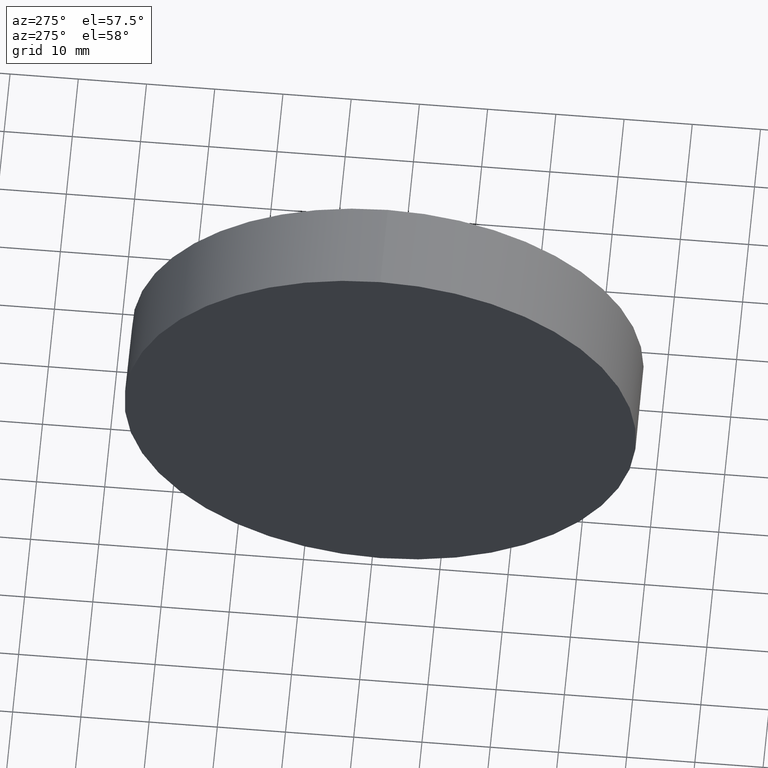
[diagram: clean part render]
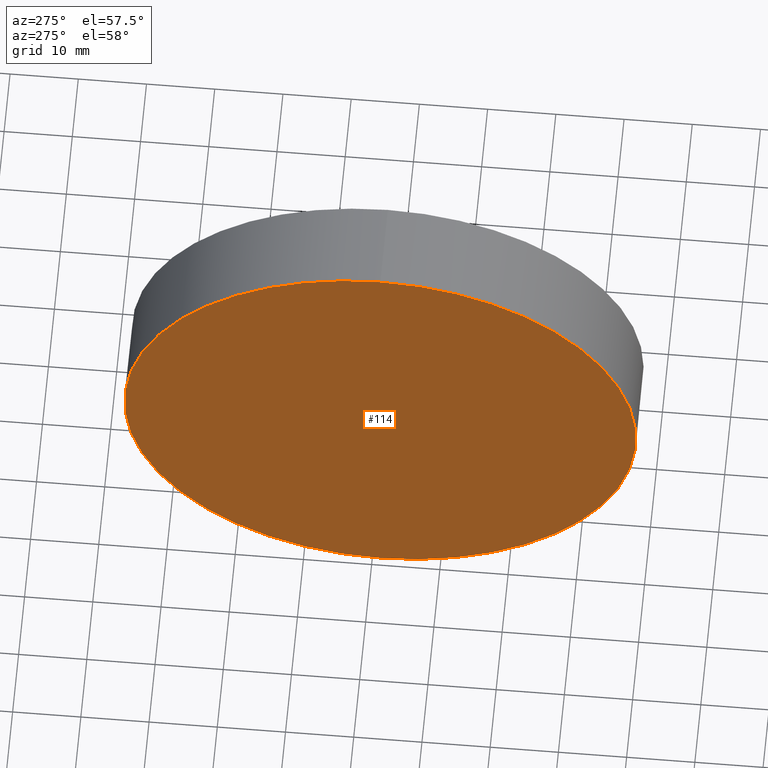
[diagram: same view with one face highlighted and labeled with its STEP entity id]
A machine part, auxiliary view. The second image highlights one B-rep face of the part: STEP entity #114.
In plain terms, the highlighted planar face has unit normal (1, 0, 0).
Its self-contained STEP definition (entity closure, byte-faithful):
#5 = CARTESIAN_POINT ( 'NONE',  ( 230.1996119052661200, 138.7560422467448700, 0.0000000000000000000 ) ) ;
#8 = VERTEX_POINT ( 'NONE', #102 ) ;
#18 = DIRECTION ( 'NONE',  ( -1.000000000000000000, -0.0000000000000000000, -0.0000000000000000000 ) ) ;
#35 = CARTESIAN_POINT ( 'NONE',  ( 230.1996119052661200, 138.7560422467448700, 37.50000000000000700 ) ) ;
#53 = DIRECTION ( 'NONE',  ( 1.000000000000000000, 0.0000000000000000000, 0.0000000000000000000 ) ) ;
#56 = DIRECTION ( 'NONE',  ( -1.000000000000000000, -0.0000000000000000000, -0.0000000000000000000 ) ) ;
#59 = AXIS2_PLACEMENT_3D ( 'NONE', #157, #56, #175 ) ;
#80 = AXIS2_PLACEMENT_3D ( 'NONE', #5, #53, #156 ) ;
#82 = ORIENTED_EDGE ( 'NONE', *, *, #95, .T. ) ;
#87 = CARTESIAN_POINT ( 'NONE',  ( 230.1996119052661200, 138.7560422467448700, 0.0000000000000000000 ) ) ;
#95 = EDGE_CURVE ( 'NONE', #162, #8, #123, .T. ) ;
#97 = FACE_OUTER_BOUND ( 'NONE', #154, .T. ) ;
#98 = PLANE ( 'NONE',  #80 ) ;
#102 = CARTESIAN_POINT ( 'NONE',  ( 230.1996119052661200, 138.7560422467448700, -37.50000000000000700 ) ) ;
#114 = ADVANCED_FACE ( 'NONE', ( #97 ), #98, .F. ) ;
#123 = CIRCLE ( 'NONE', #170, 37.50000000000000700 ) ;
#137 = ORIENTED_EDGE ( 'NONE', *, *, #153, .T. ) ;
#153 = EDGE_CURVE ( 'NONE', #8, #162, #168, .T. ) ;
#154 = EDGE_LOOP ( 'NONE', ( #82, #137 ) ) ;
#156 = DIRECTION ( 'NONE',  ( 0.0000000000000000000, 0.0000000000000000000, -1.000000000000000000 ) ) ;
#157 = CARTESIAN_POINT ( 'NONE',  ( 230.1996119052661200, 138.7560422467448700, 0.0000000000000000000 ) ) ;
#159 = DIRECTION ( 'NONE',  ( 0.0000000000000000000, 0.0000000000000000000, 1.000000000000000000 ) ) ;
#162 = VERTEX_POINT ( 'NONE', #35 ) ;
#168 = CIRCLE ( 'NONE', #59, 37.50000000000000700 ) ;
#170 = AXIS2_PLACEMENT_3D ( 'NONE', #87, #18, #159 ) ;
#175 = DIRECTION ( 'NONE',  ( 0.0000000000000000000, 0.0000000000000000000, 1.000000000000000000 ) ) ;